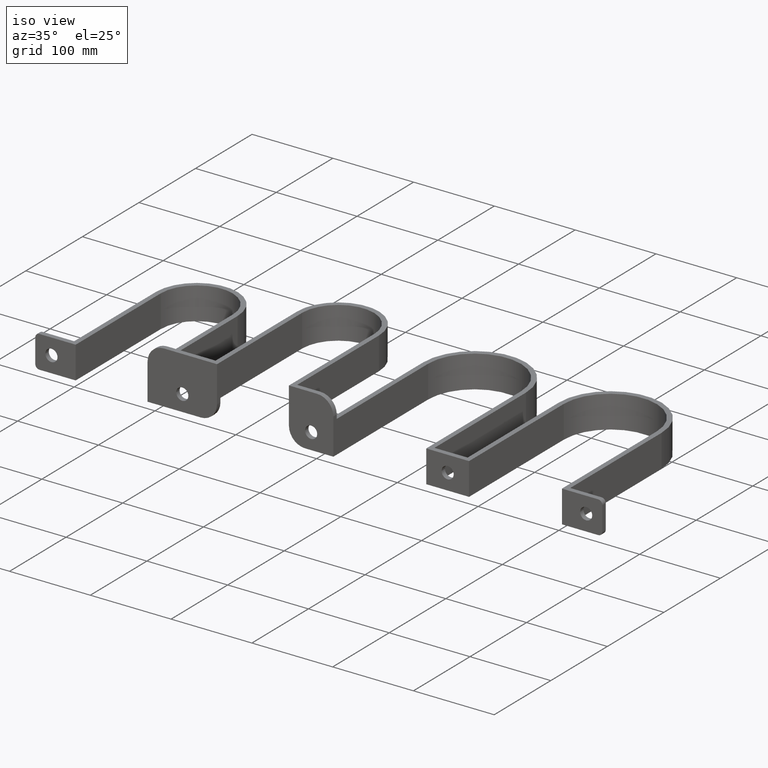
[diagram: clean part render]
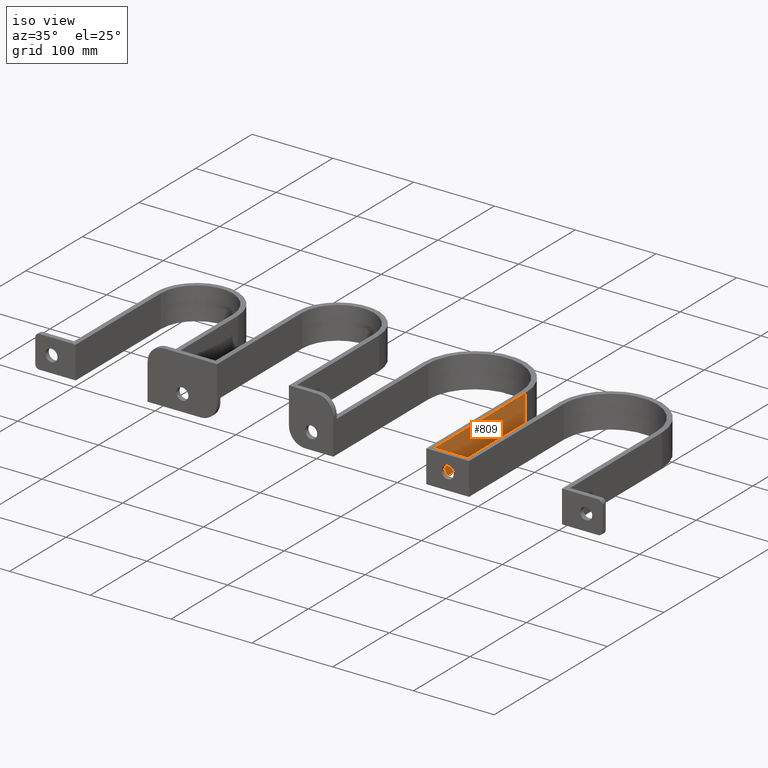
[diagram: same view with one face highlighted and labeled with its STEP entity id]
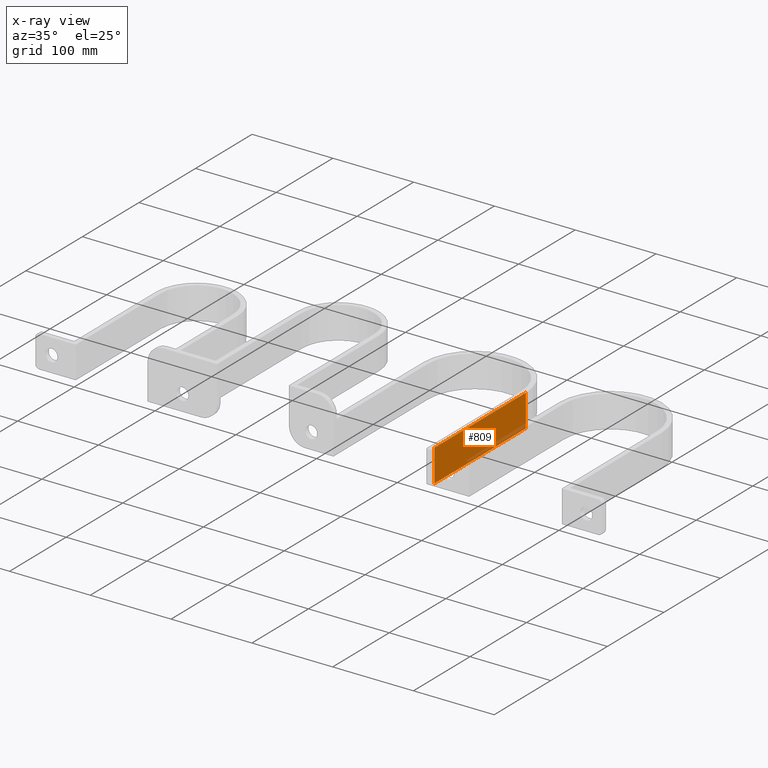
[diagram: x-ray of the same camera — body ghosted, the highlighted face saturated]
A machine part, iso view. The second image highlights one B-rep face of the part: STEP entity #809.
The next image is the same camera in x-ray: the body ghosted, the highlighted face saturated — about 8% of this face is hidden behind the body in this view.
In plain terms, the highlighted planar face has unit normal (1, 0, 0).
Its self-contained STEP definition (entity closure, byte-faithful):
#30 = CARTESIAN_POINT ( 'NONE',  ( 63.50000000000001421, 5.999999999999977796, 20.00000000000000000 ) ) ;
#70 = CARTESIAN_POINT ( 'NONE',  ( 63.50000000000001421, 167.4999999999999716, 20.00000000000000000 ) ) ;
#159 = VERTEX_POINT ( 'NONE', #30 ) ;
#161 = EDGE_CURVE ( 'NONE', #2232, #1912, #1258, .T. ) ;
#185 = DIRECTION ( 'NONE',  ( -0.000000000000000000, -0.000000000000000000, -1.000000000000000000 ) ) ;
#245 = DIRECTION ( 'NONE',  ( 1.000000000000000000, 0.000000000000000000, -0.000000000000000000 ) ) ;
#266 = DIRECTION ( 'NONE',  ( -0.000000000000000000, 0.000000000000000000, -1.000000000000000000 ) ) ;
#505 = CARTESIAN_POINT ( 'NONE',  ( 63.50000000000001421, 167.4999999999999716, -20.00000000000000000 ) ) ;
#549 = LINE ( 'NONE', #2039, #1361 ) ;
#637 = CARTESIAN_POINT ( 'NONE',  ( 63.50000000000001421, 167.4999999999999716, -20.00000000000000000 ) ) ;
#659 = ORIENTED_EDGE ( 'NONE', *, *, #1473, .F. ) ;
#809 = ADVANCED_FACE ( 'NONE', ( #2114 ), #1329, .T. ) ;
#1148 = VECTOR ( 'NONE', #185, 1000.000000000000000 ) ;
#1207 = CARTESIAN_POINT ( 'NONE',  ( 63.50000000000001421, 167.4999999999999716, 20.00000000000000000 ) ) ;
#1258 = LINE ( 'NONE', #637, #1809 ) ;
#1329 = PLANE ( 'NONE',  #2661 ) ;
#1330 = ORIENTED_EDGE ( 'NONE', *, *, #1430, .T. ) ;
#1361 = VECTOR ( 'NONE', #1626, 1000.000000000000000 ) ;
#1400 = LINE ( 'NONE', #1207, #1148 ) ;
#1430 = EDGE_CURVE ( 'NONE', #2361, #159, #549, .T. ) ;
#1473 = EDGE_CURVE ( 'NONE', #2361, #2232, #1400, .T. ) ;
#1517 = ORIENTED_EDGE ( 'NONE', *, *, #161, .F. ) ;
#1587 = VECTOR ( 'NONE', #1657, 1000.000000000000000 ) ;
#1626 = DIRECTION ( 'NONE',  ( -0.000000000000000000, -1.000000000000000000, 0.000000000000000000 ) ) ;
#1657 = DIRECTION ( 'NONE',  ( -0.000000000000000000, -0.000000000000000000, -1.000000000000000000 ) ) ;
#1696 = DIRECTION ( 'NONE',  ( -0.000000000000000000, -1.000000000000000000, 0.000000000000000000 ) ) ;
#1809 = VECTOR ( 'NONE', #1696, 1000.000000000000000 ) ;
#1858 = CARTESIAN_POINT ( 'NONE',  ( 63.50000000000001421, 167.4999999999999716, 20.00000000000000000 ) ) ;
#1912 = VERTEX_POINT ( 'NONE', #2159 ) ;
#1930 = EDGE_CURVE ( 'NONE', #159, #1912, #2539, .T. ) ;
#1964 = ORIENTED_EDGE ( 'NONE', *, *, #1930, .T. ) ;
#2039 = CARTESIAN_POINT ( 'NONE',  ( 63.50000000000001421, 167.4999999999999716, 20.00000000000000000 ) ) ;
#2114 = FACE_OUTER_BOUND ( 'NONE', #2474, .T. ) ;
#2159 = CARTESIAN_POINT ( 'NONE',  ( 63.50000000000001421, 5.999999999999977796, -20.00000000000000000 ) ) ;
#2232 = VERTEX_POINT ( 'NONE', #505 ) ;
#2261 = CARTESIAN_POINT ( 'NONE',  ( 63.50000000000001421, 5.999999999999977796, 20.00000000000000000 ) ) ;
#2361 = VERTEX_POINT ( 'NONE', #1858 ) ;
#2474 = EDGE_LOOP ( 'NONE', ( #1517, #659, #1330, #1964 ) ) ;
#2539 = LINE ( 'NONE', #2261, #1587 ) ;
#2661 = AXIS2_PLACEMENT_3D ( 'NONE', #70, #245, #266 ) ;